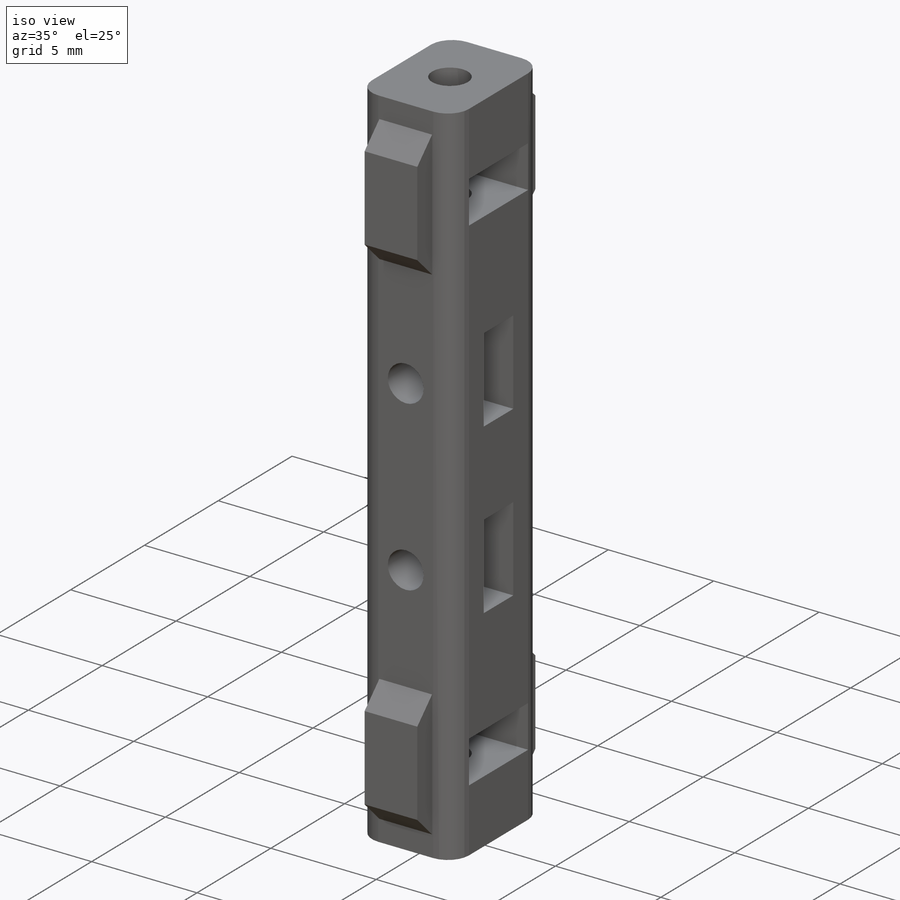
[diagram: iso view]
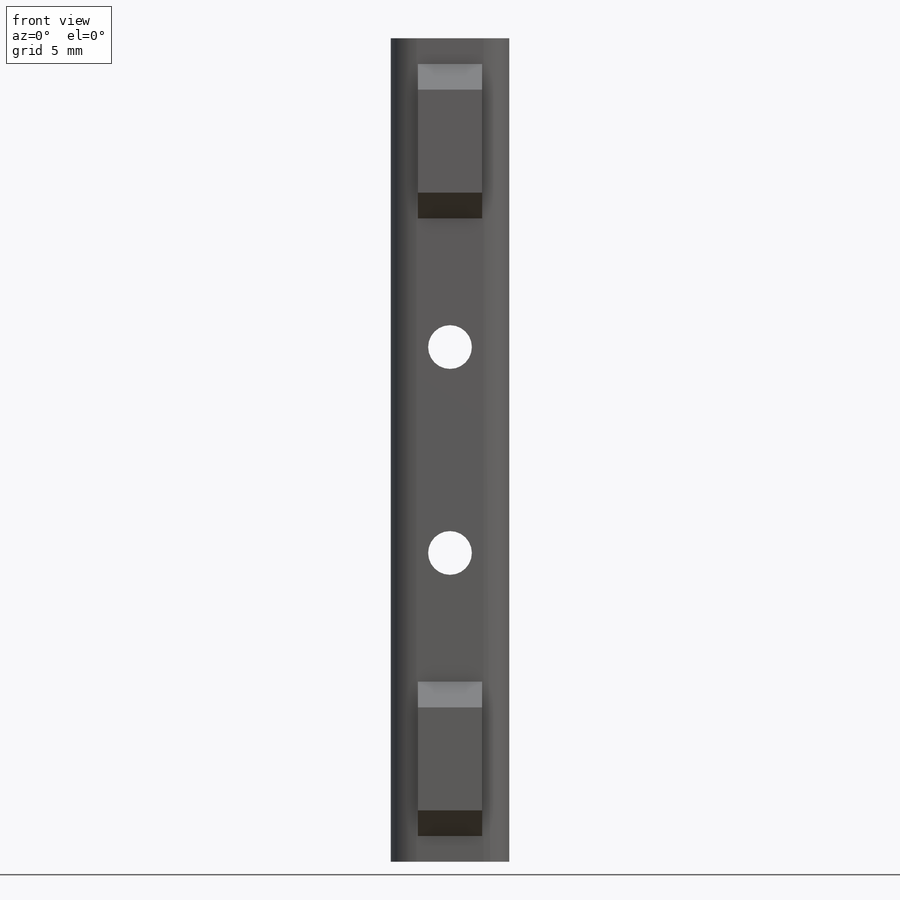
[diagram: front view]
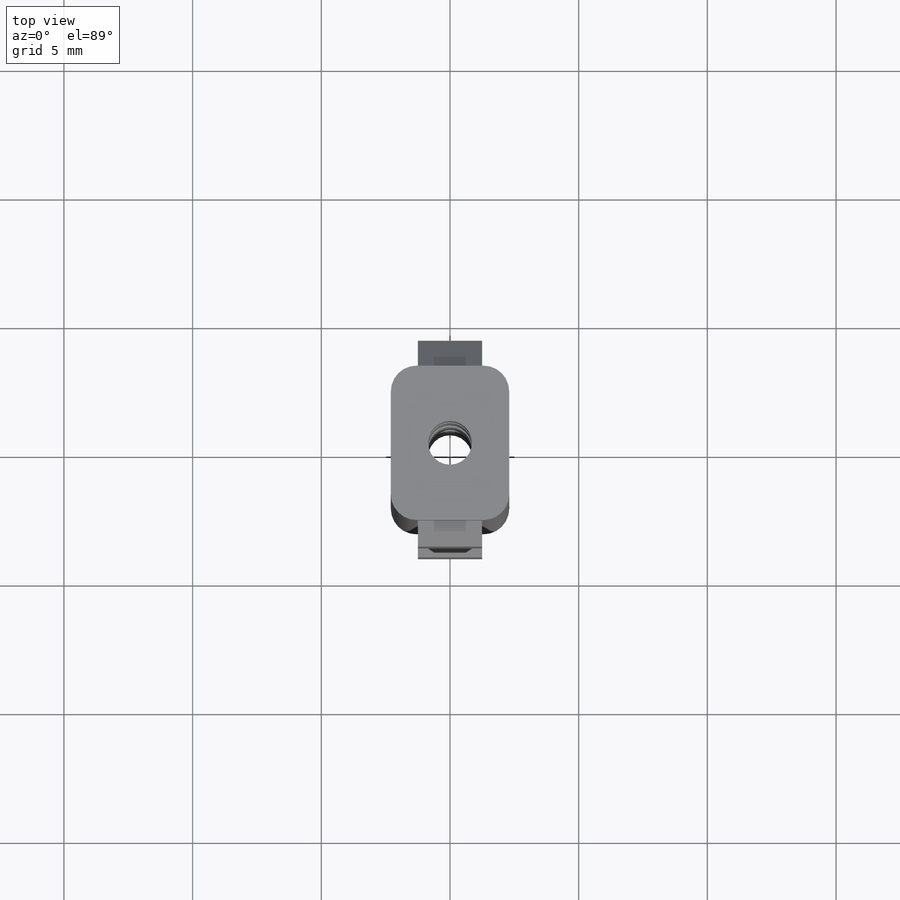
[diagram: top view]
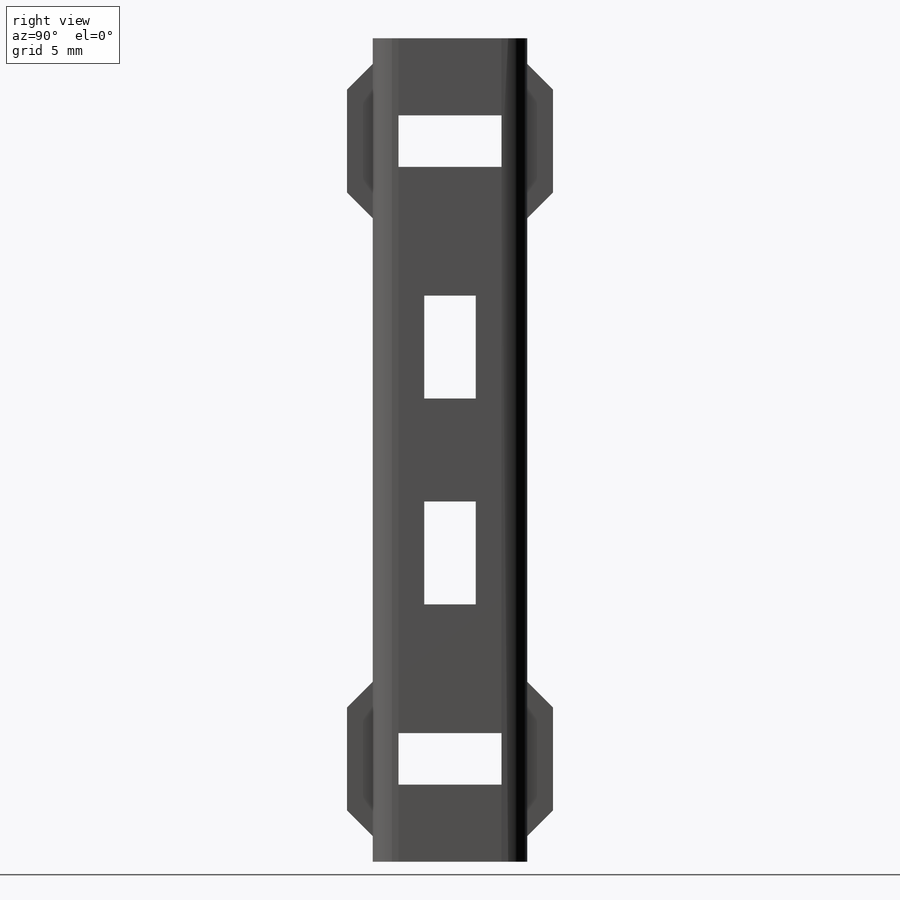
[diagram: right view]
SOLIDWORKS PART (.sldprt)
format: sldprt  version: not decoded by parser v0  size: 306,688 bytes
history: native  units: mm
features: sketch x5, plane x3, cut_extrude x3, extrude x2, material x1, fillet x1 (+10 scaffold rows collapsed)
feature tree (25):
  scaffold x10  (default folders/planes/origin — collapsed)
  material  "材质 <未指定>"
  plane  "前视基准面"
  plane  "上视基准面"
  plane  "右视基准面"
  sketch  "Sketch1"  dims[D1=1.7mm D2=4.6mm D3=6.0mm]
  extrude  "Extrude1"  Depth=32mm
  sketch  "Sketch2"  dims[c1.D1=~3.774425mm c2.D1=45.0deg c2.D2=2.5mm c2.D3=16.0mm c2.D4=10.0mm c2.D5=3.0mm c2.D6=5.5mm c2.D7=3.0mm c2.D8=4.0mm c2.D9=2.0mm c3.D1=~2.035545mm c4.D1=45.0deg c4.D2=1.0mm c4.D3=4.0mm]
  extrude  "Extrude2"  Depth=2.5mm
  sketch  "Sketch3"  dims[D1=1.7mm D2=8.0mm]
  cut_extrude  "Extrude4"  [1 undecoded]
  fillet  "Fillet2"  Radius=1mm
  cut_extrude  "Extrude5"  [1 undecoded]
  sketch  "Sketch"  dims[D1=4.6mm D2=4.6mm]
  sketch  "Sketch4"  dims[D1=2.0mm D2=4.0mm]
  cut_extrude  "Extrude6"  [1 undecoded]
decode coverage: 8 of 11 modeling features carry decoded parameters
note: ~ marks probable driven/reference dimensions
note: 3 parameter values undecoded
summary: no parameter record found for 3 features
note: suppression state not decoded; provenance and decode notes live in map.json
